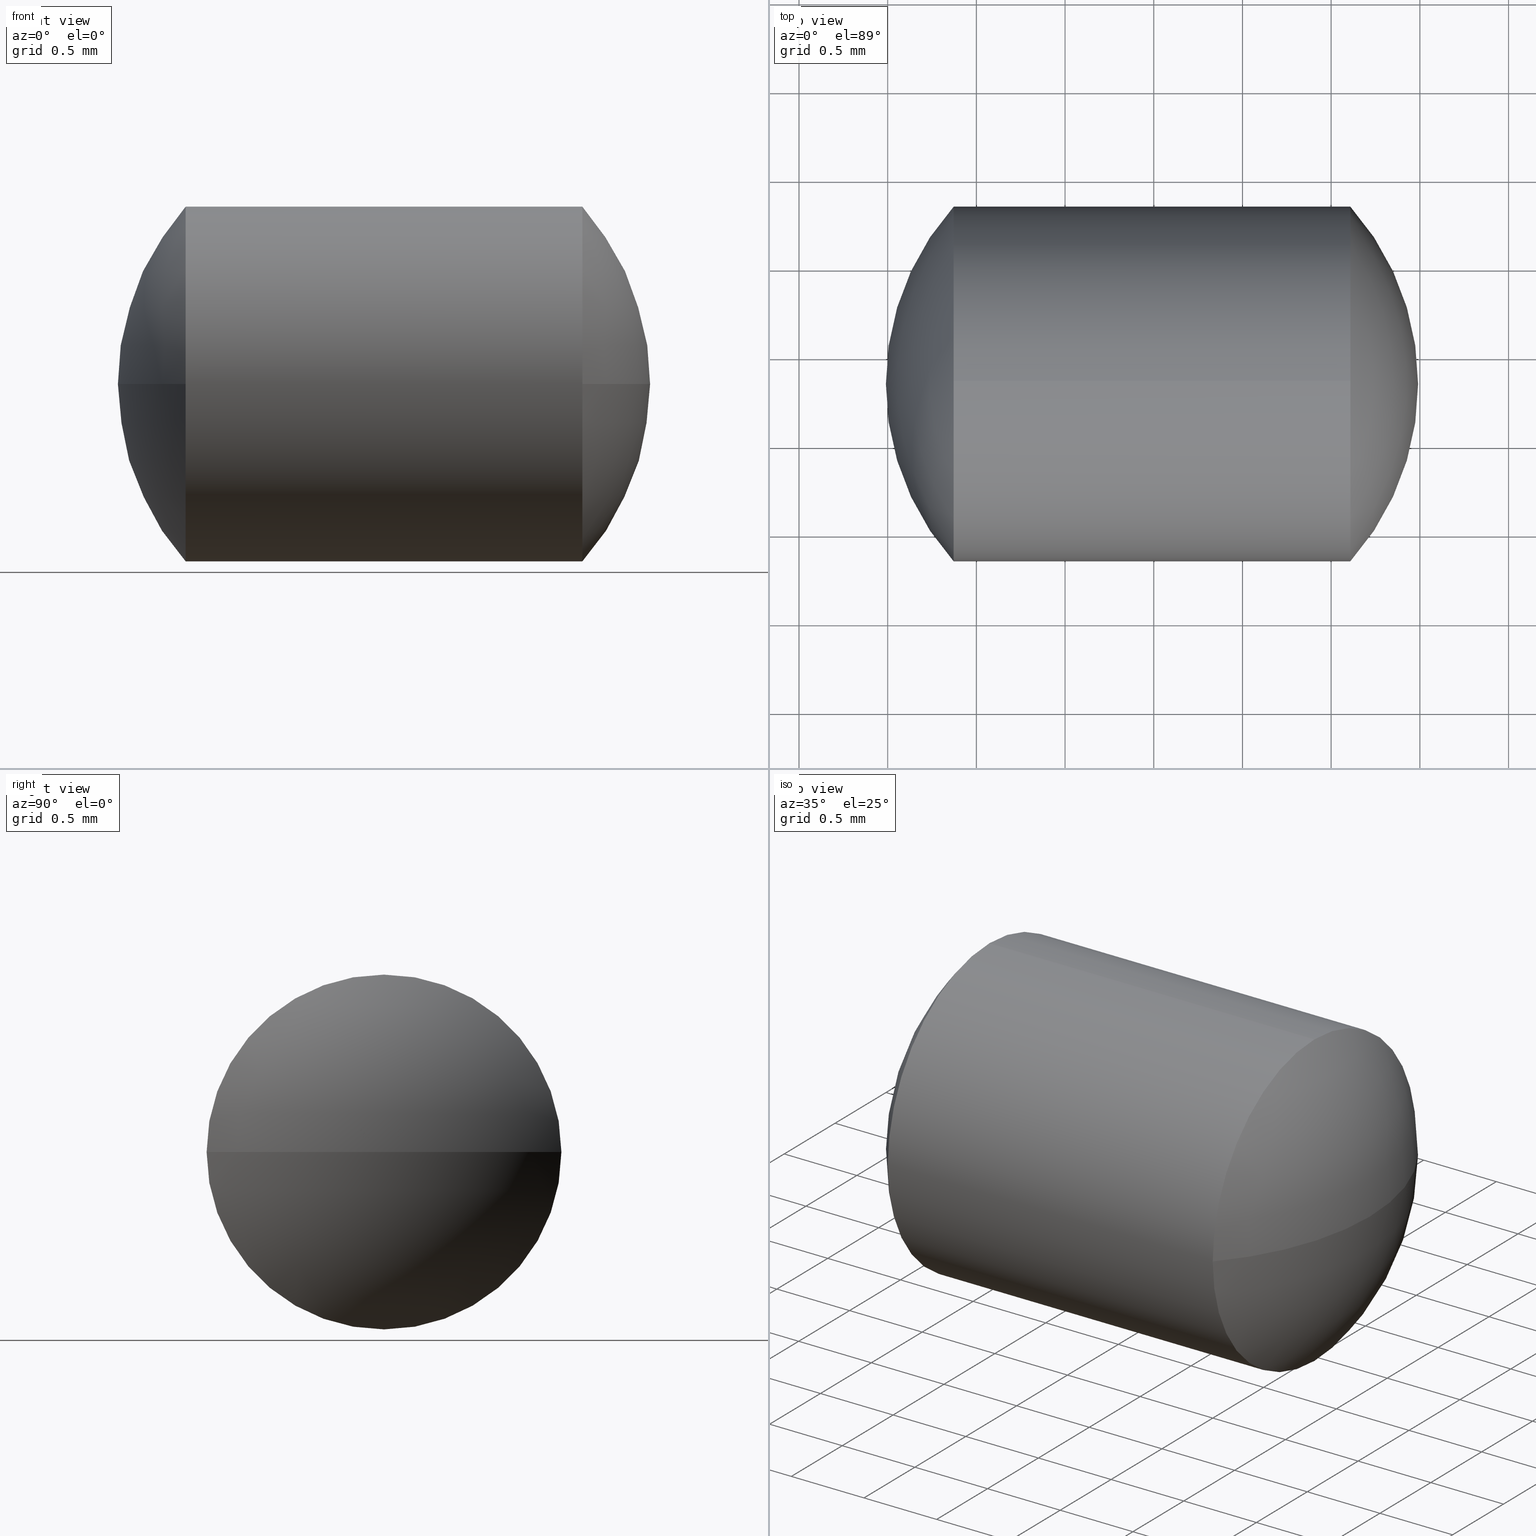
[diagram: canonical four-view strip — front | top / right | iso, engineering-drawing reading convention]
A machine part, canonical four-view strip (front | top / right | iso — engineering-drawing reading convention). The complete STEP part file that produces these views, byte-faithful:
ISO-10303-21;
HEADER;
FILE_DESCRIPTION (( 'STEP AP203' ),
    '1' );
FILE_NAME ('165001.STEP',
    '2019-06-04T01:23:13',
    ( '' ),
    ( '' ),
    'SwSTEP 2.0',
    'SolidWorks 2016',
    '' );
FILE_SCHEMA (( 'CONFIG_CONTROL_DESIGN' ));
ENDSEC;

DATA;
#1 = DIRECTION ( 'NONE',  ( 0.0000000000000000000, 1.000000000000000000, 1.224646799147359400E-016 ) ) ;
#2 = PRODUCT_RELATED_PRODUCT_CATEGORY ( 'detail', '', ( #127 ) ) ;
#3 = CARTESIAN_POINT ( 'NONE',  ( 232.2484920441100100, 133.3448637497280600, -1.000000000000000900 ) ) ;
#4 = VERTEX_POINT ( 'NONE', #209 ) ;
#5 = DIRECTION ( 'NONE',  ( 1.000000000000000000, 0.0000000000000000000, 0.0000000000000000000 ) ) ;
#6 = PERSON_AND_ORGANIZATION ( #20, #306 ) ;
#7 = APPLICATION_CONTEXT ( 'configuration controlled 3d designs of mechanical parts and assemblies' ) ;
#8 = AXIS2_PLACEMENT_3D ( 'NONE', #252, #300, #326 ) ;
#9 = DIRECTION ( 'NONE',  ( 0.0000000000000000000, 0.0000000000000000000, 1.000000000000000000 ) ) ;
#10 = CARTESIAN_POINT ( 'NONE',  ( 232.8719949570514700, 133.3448637497280600, 0.0000000000000000000 ) ) ;
#11 = ORIENTED_EDGE ( 'NONE', *, *, #46, .T. ) ;
#12 = APPROVAL_STATUS ( 'not_yet_approved' ) ;
#13 = SECURITY_CLASSIFICATION_LEVEL ( 'unclassified' ) ;
#14 = ADVANCED_FACE ( 'NONE', ( #133 ), #65, .T. ) ;
#15 = AXIS2_PLACEMENT_3D ( 'NONE', #24, #130, #55 ) ;
#16 = APPROVAL_DATE_TIME ( #85, #342 ) ;
#17 = CC_DESIGN_PERSON_AND_ORGANIZATION_ASSIGNMENT ( #27, #93, ( #127 ) ) ;
#18 = ADVANCED_FACE ( 'NONE', ( #178 ), #250, .T. ) ;
#19 = PERSON_AND_ORGANIZATION ( #20, #306 ) ;
#20 = PERSON ( 'δָ��', 'δָ��', 'δָ��', ('δָ��'), ('δָ��'), ('δָ��') ) ;
#21 = CC_DESIGN_DATE_AND_TIME_ASSIGNMENT ( #105, #207, ( #296 ) ) ;
#22 = CC_DESIGN_APPROVAL ( #42, ( #124 ) ) ;
#23 = DIRECTION ( 'NONE',  ( 0.0000000000000000000, 0.0000000000000000000, 1.000000000000000000 ) ) ;
#24 = CARTESIAN_POINT ( 'NONE',  ( 233.9900289458013800, 133.3448637497280600, 0.0000000000000000000 ) ) ;
#25 = APPROVAL_DATE_TIME ( #44, #165 ) ;
#26 = EDGE_CURVE ( 'NONE', #54, #275, #186, .T. ) ;
#27 = PERSON_AND_ORGANIZATION ( #20, #306 ) ;
#28 = CIRCLE ( 'NONE', #152, 1.500000000000001300 ) ;
#29 = DIRECTION ( 'NONE',  ( -0.0000000000000000000, 0.0000000000000000000, -1.000000000000000000 ) ) ;
#30 = DIRECTION ( 'NONE',  ( -0.0000000000000000000, 0.0000000000000000000, -1.000000000000000000 ) ) ;
#31 = DIRECTION ( 'NONE',  ( 0.0000000000000000000, 1.000000000000000000, 0.0000000000000000000 ) ) ;
#32 = AXIS2_PLACEMENT_3D ( 'NONE', #108, #29, #293 ) ;
#33 = DIRECTION ( 'NONE',  ( 1.000000000000000000, 0.0000000000000000000, 0.0000000000000000000 ) ) ;
#34 = AXIS2_PLACEMENT_3D ( 'NONE', #87, #64, #143 ) ;
#35 = COORDINATED_UNIVERSAL_TIME_OFFSET ( 8, 0, .AHEAD. ) ;
#36 = DIRECTION ( 'NONE',  ( 0.0000000000000000000, 0.0000000000000000000, 1.000000000000000000 ) ) ;
#37 = PERSON_AND_ORGANIZATION ( #20, #306 ) ;
#38 = DATE_TIME_ROLE ( 'creation_date' ) ;
#39 = PERSON_AND_ORGANIZATION_ROLE ( 'creator' ) ;
#40 = CARTESIAN_POINT ( 'NONE',  ( 0.0000000000000000000, 0.0000000000000000000, 0.0000000000000000000 ) ) ;
#41 = PERSON_AND_ORGANIZATION ( #20, #306 ) ;
#42 = APPROVAL ( #325, 'δָ��' ) ;
#43 = ADVANCED_FACE ( 'NONE', ( #313 ), #159, .T. ) ;
#44 = DATE_AND_TIME ( #255, #335 ) ;
#45 = CLOSED_SHELL ( 'NONE', ( #176, #18, #120, #14, #96, #43 ) ) ;
#46 = EDGE_CURVE ( 'NONE', #54, #264, #235, .T. ) ;
#47 = APPROVAL_PERSON_ORGANIZATION ( #6, #284, #228 ) ;
#48 = FACE_OUTER_BOUND ( 'NONE', #74, .T. ) ;
#49 = EDGE_CURVE ( 'NONE', #320, #4, #116, .T. ) ;
#50 = AXIS2_PLACEMENT_3D ( 'NONE', #158, #184, #160 ) ;
#51 = APPROVAL_PERSON_ORGANIZATION ( #97, #165, #301 ) ;
#52 = CC_DESIGN_APPROVAL ( #290, ( #204 ) ) ;
#53 = CIRCLE ( 'NONE', #213, 1.000000000000000900 ) ;
#54 = VERTEX_POINT ( 'NONE', #337 ) ;
#55 = DIRECTION ( 'NONE',  ( 0.0000000000000000000, 1.000000000000000000, 0.0000000000000000000 ) ) ;
#56 = DIRECTION ( 'NONE',  ( 0.0000000000000000000, 1.224646799147353200E-016, -1.000000000000000000 ) ) ;
#57 = CARTESIAN_POINT ( 'NONE',  ( 232.4900289458013600, 133.3448637497280600, 0.0000000000000000000 ) ) ;
#58 = PRODUCT_DEFINITION_FORMATION_WITH_SPECIFIED_SOURCE ( '�κ�', '', #127, .NOT_KNOWN. ) ;
#59 = DIRECTION ( 'NONE',  ( 0.0000000000000000000, 0.0000000000000000000, 1.000000000000000000 ) ) ;
#60 = PERSON_AND_ORGANIZATION ( #20, #306 ) ;
#61 = CARTESIAN_POINT ( 'NONE',  ( 232.8719949570514700, 133.3448637497280600, 1.000000000000000900 ) ) ;
#62 = APPROVAL_DATE_TIME ( #236, #290 ) ;
#63 = EDGE_CURVE ( 'NONE', #150, #4, #262, .T. ) ;
#64 = DIRECTION ( 'NONE',  ( 0.0000000000000000000, 0.0000000000000000000, 1.000000000000000000 ) ) ;
#65 = SPHERICAL_SURFACE ( 'NONE', #15, 1.499999999999998200 ) ;
#66 = APPROVAL_ROLE ( '' ) ;
#67 = PERSON_AND_ORGANIZATION_ROLE ( 'classification_officer' ) ;
#68 = APPLICATION_CONTEXT ( 'configuration controlled 3d designs of mechanical parts and assemblies' ) ;
#69 = CALENDAR_DATE ( 2019, 4, 6 ) ;
#70 = AXIS2_PLACEMENT_3D ( 'NONE', #82, #241, #242 ) ;
#71 = FACE_OUTER_BOUND ( 'NONE', #206, .T. ) ;
#72 = CC_DESIGN_PERSON_AND_ORGANIZATION_ASSIGNMENT ( #177, #251, ( #58 ) ) ;
#73 = COORDINATED_UNIVERSAL_TIME_OFFSET ( 8, 0, .AHEAD. ) ;
#74 = EDGE_LOOP ( 'NONE', ( #134, #77, #343, #137 ) ) ;
#75 = ORIENTED_EDGE ( 'NONE', *, *, #336, .F. ) ;
#76 = CC_DESIGN_SECURITY_CLASSIFICATION ( #124, ( #58 ) ) ;
#77 = ORIENTED_EDGE ( 'NONE', *, *, #80, .T. ) ;
#78 = DATE_AND_TIME ( #92, #161 ) ;
#79 = MANIFOLD_SOLID_BREP ( '��ת1', #45 ) ;
#80 = EDGE_CURVE ( 'NONE', #320, #275, #28, .T. ) ;
#81 = ORIENTED_EDGE ( 'NONE', *, *, #170, .F. ) ;
#82 = CARTESIAN_POINT ( 'NONE',  ( 233.9900289458013800, 133.3448637497280600, 0.0000000000000000000 ) ) ;
#83 = CARTESIAN_POINT ( 'NONE',  ( 232.8719949570514700, 132.3448637497280900, -1.224646799147344800E-016 ) ) ;
#84 = DIRECTION ( 'NONE',  ( 0.0000000000000000000, 0.0000000000000000000, 1.000000000000000000 ) ) ;
#85 = DATE_AND_TIME ( #140, #119 ) ;
#86 = AXIS2_PLACEMENT_3D ( 'NONE', #187, #240, #23 ) ;
#87 = CARTESIAN_POINT ( 'NONE',  ( 0.0000000000000000000, 0.0000000000000000000, 0.0000000000000000000 ) ) ;
#88 = APPROVAL_DATE_TIME ( #157, #254 ) ;
#89 = LINE ( 'NONE', #3, #286 ) ;
#90 = APPLICATION_PROTOCOL_DEFINITION ( 'international standard', 'config_control_design', 1994, #7 ) ;
#91 = APPROVAL_STATUS ( 'not_yet_approved' ) ;
#92 = CALENDAR_DATE ( 2019, 4, 6 ) ;
#93 = PERSON_AND_ORGANIZATION_ROLE ( 'design_owner' ) ;
#94 = PRODUCT_DEFINITION_SHAPE ( 'NONE', 'NONE',  #204 ) ;
#95 = ORIENTED_EDGE ( 'NONE', *, *, #63, .T. ) ;
#96 = ADVANCED_FACE ( 'NONE', ( #48 ), #273, .T. ) ;
#97 = PERSON_AND_ORGANIZATION ( #20, #306 ) ;
#98 = EDGE_CURVE ( 'NONE', #150, #331, #89, .T. ) ;
#99 = LOCAL_TIME ( 9, 23, 13.00000000000000000, #73 ) ;
#100 = AXIS2_PLACEMENT_3D ( 'NONE', #265, #30, #31 ) ;
#101 = COORDINATED_UNIVERSAL_TIME_OFFSET ( 8, 0, .AHEAD. ) ;
#102 = CC_DESIGN_PERSON_AND_ORGANIZATION_ASSIGNMENT ( #333, #117, ( #204 ) ) ;
#103 = LOCAL_TIME ( 9, 23, 13.00000000000000000, #258 ) ;
#104 = CARTESIAN_POINT ( 'NONE',  ( 235.1080629345512700, 133.3448637497280600, -1.000000000000000900 ) ) ;
#105 = DATE_AND_TIME ( #185, #279 ) ;
#106 = CC_DESIGN_DATE_AND_TIME_ASSIGNMENT ( #238, #169, ( #124 ) ) ;
#107 = COORDINATED_UNIVERSAL_TIME_OFFSET ( 8, 0, .AHEAD. ) ;
#108 = CARTESIAN_POINT ( 'NONE',  ( 233.9900289458013800, 133.3448637497280600, 0.0000000000000000000 ) ) ;
#109 = EDGE_LOOP ( 'NONE', ( #231, #287, #163, #75 ) ) ;
#110 = ADVANCED_BREP_SHAPE_REPRESENTATION ( '165001', ( #79, #329 ), #246 ) ;
#111 = DIRECTION ( 'NONE',  ( -1.000000000000000000, -0.0000000000000000000, -0.0000000000000000000 ) ) ;
#112 = COORDINATED_UNIVERSAL_TIME_OFFSET ( 8, 0, .AHEAD. ) ;
#113 = AXIS2_PLACEMENT_3D ( 'NONE', #162, #56, #1 ) ;
#114 = ORIENTED_EDGE ( 'NONE', *, *, #189, .F. ) ;
#115 = SECURITY_CLASSIFICATION_LEVEL ( 'unclassified' ) ;
#116 = CIRCLE ( 'NONE', #113, 1.500000000000001300 ) ;
#117 = PERSON_AND_ORGANIZATION_ROLE ( 'creator' ) ;
#118 = APPLICATION_PROTOCOL_DEFINITION ( 'international standard', 'config_control_design', 1994, #68 ) ;
#119 = LOCAL_TIME ( 9, 23, 13.00000000000000000, #232 ) ;
#120 = ADVANCED_FACE ( 'NONE', ( #71 ), #195, .T. ) ;
#121 = DATE_AND_TIME ( #136, #304 ) ;
#122 = AXIS2_PLACEMENT_3D ( 'NONE', #218, #244, #84 ) ;
#123 = ORIENTED_EDGE ( 'NONE', *, *, #336, .T. ) ;
#124 = SECURITY_CLASSIFICATION ( '', '', #13 ) ;
#125 = CIRCLE ( 'NONE', #138, 1.500000000000001300 ) ;
#126 = ORIENTED_EDGE ( 'NONE', *, *, #229, .T. ) ;
#127 = PRODUCT ( '165001', '165001', '', ( #253 ) ) ;
#128 = CC_DESIGN_DATE_AND_TIME_ASSIGNMENT ( #78, #230, ( #204 ) ) ;
#129 = DATE_AND_TIME ( #277, #267 ) ;
#130 = DIRECTION ( 'NONE',  ( -0.0000000000000000000, 0.0000000000000000000, -1.000000000000000000 ) ) ;
#131 = COORDINATED_UNIVERSAL_TIME_OFFSET ( 8, 0, .AHEAD. ) ;
#132 = AXIS2_PLACEMENT_3D ( 'NONE', #190, #294, #164 ) ;
#133 = FACE_OUTER_BOUND ( 'NONE', #215, .T. ) ;
#134 = ORIENTED_EDGE ( 'NONE', *, *, #49, .F. ) ;
#135 = CARTESIAN_POINT ( 'NONE',  ( 235.4900289458013800, 133.3448637497280600, 0.0000000000000000000 ) ) ;
#136 = CALENDAR_DATE ( 2019, 4, 6 ) ;
#137 = ORIENTED_EDGE ( 'NONE', *, *, #229, .F. ) ;
#138 = AXIS2_PLACEMENT_3D ( 'NONE', #319, #263, #5 ) ;
#139 = FACE_OUTER_BOUND ( 'NONE', #153, .T. ) ;
#140 = CALENDAR_DATE ( 2019, 4, 6 ) ;
#141 = PERSON_AND_ORGANIZATION ( #20, #306 ) ;
#142 = CC_DESIGN_PERSON_AND_ORGANIZATION_ASSIGNMENT ( #37, #322, ( #58 ) ) ;
#143 = DIRECTION ( 'NONE',  ( 1.000000000000000000, 0.0000000000000000000, 0.0000000000000000000 ) ) ;
#144 = APPLICATION_PROTOCOL_DEFINITION ( 'international standard', 'config_control_design', 1994, #145 ) ;
#145 = APPLICATION_CONTEXT ( 'configuration controlled 3d designs of mechanical parts and assemblies' ) ;
#146 = ORIENTED_EDGE ( 'NONE', *, *, #315, .T. ) ;
#147 =( NAMED_UNIT ( * ) PLANE_ANGLE_UNIT ( ) SI_UNIT ( $, .RADIAN. ) );
#148 = EDGE_CURVE ( 'NONE', #216, #183, #211, .T. ) ;
#149 = PERSON_AND_ORGANIZATION_ROLE ( 'classification_officer' ) ;
#150 = VERTEX_POINT ( 'NONE', #104 ) ;
#151 = PRODUCT_DEFINITION ( 'δ֪', '', #237, #243 ) ;
#152 = AXIS2_PLACEMENT_3D ( 'NONE', #191, #344, #33 ) ;
#153 = EDGE_LOOP ( 'NONE', ( #123, #310, #81, #338, #292, #179 ) ) ;
#154 = APPROVAL_STATUS ( 'not_yet_approved' ) ;
#155 = ORIENTED_EDGE ( 'NONE', *, *, #171, .F. ) ;
#156 = AXIS2_PLACEMENT_3D ( 'NONE', #288, #193, #291 ) ;
#157 = DATE_AND_TIME ( #69, #330 ) ;
#158 = CARTESIAN_POINT ( 'NONE',  ( 235.1080629345512700, 133.3448637497280600, 0.0000000000000000000 ) ) ;
#159 = CYLINDRICAL_SURFACE ( 'NONE', #86, 1.000000000000000900 ) ;
#160 = DIRECTION ( 'NONE',  ( 0.0000000000000000000, 0.0000000000000000000, 1.000000000000000000 ) ) ;
#161 = LOCAL_TIME ( 9, 23, 13.00000000000000000, #112 ) ;
#162 = CARTESIAN_POINT ( 'NONE',  ( 233.9900289458013800, 133.3448637497280600, 0.0000000000000000000 ) ) ;
#163 = ORIENTED_EDGE ( 'NONE', *, *, #63, .F. ) ;
#164 = DIRECTION ( 'NONE',  ( 0.0000000000000000000, 0.0000000000000000000, 1.000000000000000000 ) ) ;
#165 = APPROVAL ( #91, 'δָ��' ) ;
#166 = CARTESIAN_POINT ( 'NONE',  ( 232.8719949570514700, 133.3448637497280600, -1.000000000000000900 ) ) ;
#167 = DIRECTION ( 'NONE',  ( -1.000000000000000000, -0.0000000000000000000, -0.0000000000000000000 ) ) ;
#168 = APPROVAL_DATE_TIME ( #121, #42 ) ;
#169 = DATE_TIME_ROLE ( 'classification_date' ) ;
#170 = EDGE_CURVE ( 'NONE', #227, #331, #332, .T. ) ;
#171 = EDGE_CURVE ( 'NONE', #227, #183, #125, .T. ) ;
#172 = DIRECTION ( 'NONE',  ( 1.000000000000000000, 0.0000000000000000000, 0.0000000000000000000 ) ) ;
#173 = AXIS2_PLACEMENT_3D ( 'NONE', #220, #167, #59 ) ;
#174 = PERSON_AND_ORGANIZATION ( #20, #306 ) ;
#175 = PRODUCT ( '165001', '165001', '', ( #201 ) ) ;
#176 = ADVANCED_FACE ( 'NONE', ( #139 ), #321, .T. ) ;
#177 = PERSON_AND_ORGANIZATION ( #20, #306 ) ;
#178 = FACE_OUTER_BOUND ( 'NONE', #109, .T. ) ;
#179 = ORIENTED_EDGE ( 'NONE', *, *, #26, .T. ) ;
#180 = CC_DESIGN_PERSON_AND_ORGANIZATION_ASSIGNMENT ( #234, #199, ( #151 ) ) ;
#181 = CARTESIAN_POINT ( 'NONE',  ( 233.9900289458013800, 133.3448637497280600, 0.0000000000000000000 ) ) ;
#182 = CALENDAR_DATE ( 2019, 4, 6 ) ;
#183 = VERTEX_POINT ( 'NONE', #57 ) ;
#184 = DIRECTION ( 'NONE',  ( -1.000000000000000000, -0.0000000000000000000, -0.0000000000000000000 ) ) ;
#185 = CALENDAR_DATE ( 2019, 4, 6 ) ;
#186 = CIRCLE ( 'NONE', #50, 1.000000000000000900 ) ;
#187 = CARTESIAN_POINT ( 'NONE',  ( 232.2484920441100100, 133.3448637497280600, 0.0000000000000000000 ) ) ;
#188 = CARTESIAN_POINT ( 'NONE',  ( 235.1080629345512700, 134.3448637497280600, 0.0000000000000000000 ) ) ;
#189 = EDGE_CURVE ( 'NONE', #216, #264, #257, .T. ) ;
#190 = CARTESIAN_POINT ( 'NONE',  ( 235.1080629345512700, 133.3448637497280600, 0.0000000000000000000 ) ) ;
#191 = CARTESIAN_POINT ( 'NONE',  ( 233.9900289458013800, 133.3448637497280600, 0.0000000000000000000 ) ) ;
#192 = APPROVAL_PERSON_ORGANIZATION ( #285, #42, #247 ) ;
#193 = DIRECTION ( 'NONE',  ( -1.000000000000000000, -0.0000000000000000000, -0.0000000000000000000 ) ) ;
#194 = AXIS2_PLACEMENT_3D ( 'NONE', #289, #269, #219 ) ;
#195 = SPHERICAL_SURFACE ( 'NONE', #32, 1.499999999999998200 ) ;
#196 = DATE_AND_TIME ( #261, #103 ) ;
#197 = CARTESIAN_POINT ( 'NONE',  ( 235.1080629345512700, 133.3448637497280600, 0.0000000000000000000 ) ) ;
#198 = ORIENTED_EDGE ( 'NONE', *, *, #189, .T. ) ;
#199 = PERSON_AND_ORGANIZATION_ROLE ( 'creator' ) ;
#200 = ORIENTED_EDGE ( 'NONE', *, *, #315, .F. ) ;
#201 = MECHANICAL_CONTEXT ( 'NONE', #7, 'mechanical' ) ;
#202 = PERSON_AND_ORGANIZATION_ROLE ( 'design_owner' ) ;
#203 = APPROVAL_PERSON_ORGANIZATION ( #60, #254, #66 ) ;
#204 = PRODUCT_DEFINITION ( 'δ֪', '', #58, #345 ) ;
#205 = CIRCLE ( 'NONE', #8, 1.000000000000000900 ) ;
#206 = EDGE_LOOP ( 'NONE', ( #221, #146, #283, #155 ) ) ;
#207 = DATE_TIME_ROLE ( 'classification_date' ) ;
#208 = PERSON_AND_ORGANIZATION ( #20, #306 ) ;
#209 = CARTESIAN_POINT ( 'NONE',  ( 235.1080629345512700, 132.3448637497280600, -1.224646799147354200E-016 ) ) ;
#210 = ORIENTED_EDGE ( 'NONE', *, *, #311, .T. ) ;
#211 = CIRCLE ( 'NONE', #70, 1.500000000000001300 ) ;
#212 = APPROVAL_PERSON_ORGANIZATION ( #41, #342, #302 ) ;
#213 = AXIS2_PLACEMENT_3D ( 'NONE', #10, #271, #36 ) ;
#214 = DIRECTION ( 'NONE',  ( -0.0000000000000000000, 0.0000000000000000000, -1.000000000000000000 ) ) ;
#215 = EDGE_LOOP ( 'NONE', ( #341, #198, #210, #281 ) ) ;
#216 = VERTEX_POINT ( 'NONE', #83 ) ;
#217 = CC_DESIGN_SECURITY_CLASSIFICATION ( #296, ( #237 ) ) ;
#218 = CARTESIAN_POINT ( 'NONE',  ( 232.8719949570514700, 133.3448637497280600, 0.0000000000000000000 ) ) ;
#219 = DIRECTION ( 'NONE',  ( 0.0000000000000000000, 0.0000000000000000000, 1.000000000000000000 ) ) ;
#220 = CARTESIAN_POINT ( 'NONE',  ( 232.2484920441100100, 133.3448637497280600, 0.0000000000000000000 ) ) ;
#221 = ORIENTED_EDGE ( 'NONE', *, *, #170, .T. ) ;
#222 = CC_DESIGN_DATE_AND_TIME_ASSIGNMENT ( #129, #38, ( #151 ) ) ;
#223 = CARTESIAN_POINT ( 'NONE',  ( 232.8719949570514700, 134.3448637497280300, 0.0000000000000000000 ) ) ;
#224 = APPROVAL_ROLE ( '' ) ;
#225 =( LENGTH_UNIT ( ) NAMED_UNIT ( * ) SI_UNIT ( .MILLI., .METRE. ) );
#226 = APPROVAL_STATUS ( 'not_yet_approved' ) ;
#227 = VERTEX_POINT ( 'NONE', #223 ) ;
#228 = APPROVAL_ROLE ( '' ) ;
#229 = EDGE_CURVE ( 'NONE', #4, #54, #340, .T. ) ;
#230 = DATE_TIME_ROLE ( 'creation_date' ) ;
#231 = ORIENTED_EDGE ( 'NONE', *, *, #80, .F. ) ;
#232 = COORDINATED_UNIVERSAL_TIME_OFFSET ( 8, 0, .AHEAD. ) ;
#233 = AXIS2_PLACEMENT_3D ( 'NONE', #197, #111, #9 ) ;
#234 = PERSON_AND_ORGANIZATION ( #20, #306 ) ;
#235 = LINE ( 'NONE', #314, #297 ) ;
#236 = DATE_AND_TIME ( #323, #99 ) ;
#237 = PRODUCT_DEFINITION_FORMATION_WITH_SPECIFIED_SOURCE ( '�κ�', '', #175, .NOT_KNOWN. ) ;
#238 = DATE_AND_TIME ( #182, #317 ) ;
#239 = PERSON_AND_ORGANIZATION ( #20, #306 ) ;
#240 = DIRECTION ( 'NONE',  ( -1.000000000000000000, -0.0000000000000000000, -0.0000000000000000000 ) ) ;
#241 = DIRECTION ( 'NONE',  ( 0.0000000000000000000, 1.224646799147353200E-016, -1.000000000000000000 ) ) ;
#242 = DIRECTION ( 'NONE',  ( 0.0000000000000000000, 1.000000000000000000, 1.224646799147350700E-016 ) ) ;
#243 = DESIGN_CONTEXT ( 'detailed design', #68, 'design' ) ;
#244 = DIRECTION ( 'NONE',  ( -1.000000000000000000, -0.0000000000000000000, -0.0000000000000000000 ) ) ;
#245 = COORDINATED_UNIVERSAL_TIME_OFFSET ( 8, 0, .AHEAD. ) ;
#246 =( GEOMETRIC_REPRESENTATION_CONTEXT ( 3 ) GLOBAL_UNCERTAINTY_ASSIGNED_CONTEXT ( ( #295 ) ) GLOBAL_UNIT_ASSIGNED_CONTEXT ( ( #225, #147, #298 ) ) REPRESENTATION_CONTEXT ( 'NONE', 'WORKASPACE' ) );
#247 = APPROVAL_ROLE ( '' ) ;
#248 = APPROVAL_STATUS ( 'not_yet_approved' ) ;
#249 = APPROVAL_DATE_TIME ( #196, #284 ) ;
#250 = SPHERICAL_SURFACE ( 'NONE', #334, 1.500000000000008700 ) ;
#251 = PERSON_AND_ORGANIZATION_ROLE ( 'creator' ) ;
#252 = CARTESIAN_POINT ( 'NONE',  ( 232.8719949570514700, 133.3448637497280600, 0.0000000000000000000 ) ) ;
#253 = MECHANICAL_CONTEXT ( 'NONE', #145, 'mechanical' ) ;
#254 = APPROVAL ( #226, 'δָ��' ) ;
#255 = CALENDAR_DATE ( 2019, 4, 6 ) ;
#256 = EDGE_LOOP ( 'NONE', ( #272, #95, #126, #11, #114, #200 ) ) ;
#257 = CIRCLE ( 'NONE', #156, 1.000000000000000900 ) ;
#258 = COORDINATED_UNIVERSAL_TIME_OFFSET ( 8, 0, .AHEAD. ) ;
#259 = PERSON_AND_ORGANIZATION ( #20, #306 ) ;
#260 = CC_DESIGN_PERSON_AND_ORGANIZATION_ASSIGNMENT ( #259, #39, ( #237 ) ) ;
#261 = CALENDAR_DATE ( 2019, 4, 6 ) ;
#262 = CIRCLE ( 'NONE', #132, 1.000000000000000900 ) ;
#263 = DIRECTION ( 'NONE',  ( -0.0000000000000000000, 0.0000000000000000000, 1.000000000000000000 ) ) ;
#264 = VERTEX_POINT ( 'NONE', #61 ) ;
#265 = CARTESIAN_POINT ( 'NONE',  ( 233.9900289458013800, 133.3448637497280600, 0.0000000000000000000 ) ) ;
#266 = DIRECTION ( 'NONE',  ( -1.000000000000000000, -0.0000000000000000000, -0.0000000000000000000 ) ) ;
#267 = LOCAL_TIME ( 9, 23, 13.00000000000000000, #101 ) ;
#268 = CC_DESIGN_APPROVAL ( #284, ( #58 ) ) ;
#269 = DIRECTION ( 'NONE',  ( -1.000000000000000000, -0.0000000000000000000, -0.0000000000000000000 ) ) ;
#270 = CIRCLE ( 'NONE', #233, 1.000000000000000900 ) ;
#271 = DIRECTION ( 'NONE',  ( -1.000000000000000000, -0.0000000000000000000, -0.0000000000000000000 ) ) ;
#272 = ORIENTED_EDGE ( 'NONE', *, *, #98, .F. ) ;
#273 = SPHERICAL_SURFACE ( 'NONE', #100, 1.500000000000008700 ) ;
#274 = PERSON_AND_ORGANIZATION_ROLE ( 'design_supplier' ) ;
#275 = VERTEX_POINT ( 'NONE', #188 ) ;
#276 = DIRECTION ( 'NONE',  ( 0.0000000000000000000, 0.0000000000000000000, 1.000000000000000000 ) ) ;
#277 = CALENDAR_DATE ( 2019, 4, 6 ) ;
#278 = SHAPE_DEFINITION_REPRESENTATION ( #282, #110 ) ;
#279 = LOCAL_TIME ( 9, 23, 13.00000000000000000, #309 ) ;
#280 = CC_DESIGN_PERSON_AND_ORGANIZATION_ASSIGNMENT ( #19, #274, ( #237 ) ) ;
#281 = ORIENTED_EDGE ( 'NONE', *, *, #171, .T. ) ;
#282 = PRODUCT_DEFINITION_SHAPE ( 'NONE', 'NONE',  #151 ) ;
#283 = ORIENTED_EDGE ( 'NONE', *, *, #148, .T. ) ;
#284 = APPROVAL ( #248, 'δָ��' ) ;
#285 = PERSON_AND_ORGANIZATION ( #20, #306 ) ;
#286 = VECTOR ( 'NONE', #316, 1000.000000000000000 ) ;
#287 = ORIENTED_EDGE ( 'NONE', *, *, #49, .T. ) ;
#288 = CARTESIAN_POINT ( 'NONE',  ( 232.8719949570514700, 133.3448637497280600, 0.0000000000000000000 ) ) ;
#289 = CARTESIAN_POINT ( 'NONE',  ( 235.1080629345512700, 133.3448637497280600, 0.0000000000000000000 ) ) ;
#290 = APPROVAL ( #12, 'δָ��' ) ;
#291 = DIRECTION ( 'NONE',  ( 0.0000000000000000000, 0.0000000000000000000, 1.000000000000000000 ) ) ;
#292 = ORIENTED_EDGE ( 'NONE', *, *, #46, .F. ) ;
#293 = DIRECTION ( 'NONE',  ( 0.0000000000000000000, 1.000000000000000000, 0.0000000000000000000 ) ) ;
#294 = DIRECTION ( 'NONE',  ( -1.000000000000000000, -0.0000000000000000000, -0.0000000000000000000 ) ) ;
#295 = UNCERTAINTY_MEASURE_WITH_UNIT (LENGTH_MEASURE( 1.000000000000000100E-005 ), #225, 'distance_accuracy_value', 'NONE');
#296 = SECURITY_CLASSIFICATION ( '', '', #115 ) ;
#297 = VECTOR ( 'NONE', #266, 1000.000000000000000 ) ;
#298 =( NAMED_UNIT ( * ) SI_UNIT ( $, .STERADIAN. ) SOLID_ANGLE_UNIT ( ) );
#299 = PRODUCT_RELATED_PRODUCT_CATEGORY ( 'detail', '', ( #175 ) ) ;
#300 = DIRECTION ( 'NONE',  ( -1.000000000000000000, -0.0000000000000000000, -0.0000000000000000000 ) ) ;
#301 = APPROVAL_ROLE ( '' ) ;
#302 = APPROVAL_ROLE ( '' ) ;
#303 = CC_DESIGN_APPROVAL ( #165, ( #151 ) ) ;
#304 = LOCAL_TIME ( 9, 23, 13.00000000000000000, #245 ) ;
#305 = CC_DESIGN_PERSON_AND_ORGANIZATION_ASSIGNMENT ( #208, #67, ( #296 ) ) ;
#306 = ORGANIZATION ( 'δָ��', 'δָ��', '' ) ;
#307 = CC_DESIGN_PERSON_AND_ORGANIZATION_ASSIGNMENT ( #239, #149, ( #124 ) ) ;
#308 = DIRECTION ( 'NONE',  ( 0.0000000000000000000, 1.000000000000000000, 0.0000000000000000000 ) ) ;
#309 = COORDINATED_UNIVERSAL_TIME_OFFSET ( 8, 0, .AHEAD. ) ;
#310 = ORIENTED_EDGE ( 'NONE', *, *, #98, .T. ) ;
#311 = EDGE_CURVE ( 'NONE', #264, #227, #53, .T. ) ;
#312 = APPROVAL_PERSON_ORGANIZATION ( #141, #290, #224 ) ;
#313 = FACE_OUTER_BOUND ( 'NONE', #256, .T. ) ;
#314 = CARTESIAN_POINT ( 'NONE',  ( 232.2484920441100100, 133.3448637497280600, 1.000000000000000900 ) ) ;
#315 = EDGE_CURVE ( 'NONE', #331, #216, #205, .T. ) ;
#316 = DIRECTION ( 'NONE',  ( -1.000000000000000000, -0.0000000000000000000, -0.0000000000000000000 ) ) ;
#317 = LOCAL_TIME ( 9, 23, 13.00000000000000000, #131 ) ;
#318 = CC_DESIGN_APPROVAL ( #254, ( #237 ) ) ;
#319 = CARTESIAN_POINT ( 'NONE',  ( 233.9900289458013800, 133.3448637497280600, 0.0000000000000000000 ) ) ;
#320 = VERTEX_POINT ( 'NONE', #135 ) ;
#321 = CYLINDRICAL_SURFACE ( 'NONE', #173, 1.000000000000000900 ) ;
#322 = PERSON_AND_ORGANIZATION_ROLE ( 'design_supplier' ) ;
#323 = CALENDAR_DATE ( 2019, 4, 6 ) ;
#324 = CC_DESIGN_APPROVAL ( #342, ( #296 ) ) ;
#325 = APPROVAL_STATUS ( 'not_yet_approved' ) ;
#326 = DIRECTION ( 'NONE',  ( 0.0000000000000000000, 0.0000000000000000000, 1.000000000000000000 ) ) ;
#327 = APPLICATION_CONTEXT ( 'configuration controlled 3d designs of mechanical parts and assemblies' ) ;
#328 = APPLICATION_PROTOCOL_DEFINITION ( 'international standard', 'config_control_design', 1994, #327 ) ;
#329 = AXIS2_PLACEMENT_3D ( 'NONE', #40, #276, #172 ) ;
#330 = LOCAL_TIME ( 9, 23, 13.00000000000000000, #35 ) ;
#331 = VERTEX_POINT ( 'NONE', #166 ) ;
#332 = CIRCLE ( 'NONE', #122, 1.000000000000000900 ) ;
#333 = PERSON_AND_ORGANIZATION ( #20, #306 ) ;
#334 = AXIS2_PLACEMENT_3D ( 'NONE', #181, #214, #308 ) ;
#335 = LOCAL_TIME ( 9, 23, 13.00000000000000000, #107 ) ;
#336 = EDGE_CURVE ( 'NONE', #275, #150, #270, .T. ) ;
#337 = CARTESIAN_POINT ( 'NONE',  ( 235.1080629345512700, 133.3448637497280600, 1.000000000000000900 ) ) ;
#338 = ORIENTED_EDGE ( 'NONE', *, *, #311, .F. ) ;
#339 = CC_DESIGN_PERSON_AND_ORGANIZATION_ASSIGNMENT ( #174, #202, ( #175 ) ) ;
#340 = CIRCLE ( 'NONE', #194, 1.000000000000000900 ) ;
#341 = ORIENTED_EDGE ( 'NONE', *, *, #148, .F. ) ;
#342 = APPROVAL ( #154, 'δָ��' ) ;
#343 = ORIENTED_EDGE ( 'NONE', *, *, #26, .F. ) ;
#344 = DIRECTION ( 'NONE',  ( -0.0000000000000000000, 0.0000000000000000000, 1.000000000000000000 ) ) ;
#345 = DESIGN_CONTEXT ( 'detailed design', #327, 'design' ) ;
ENDSEC;
END-ISO-10303-21;
